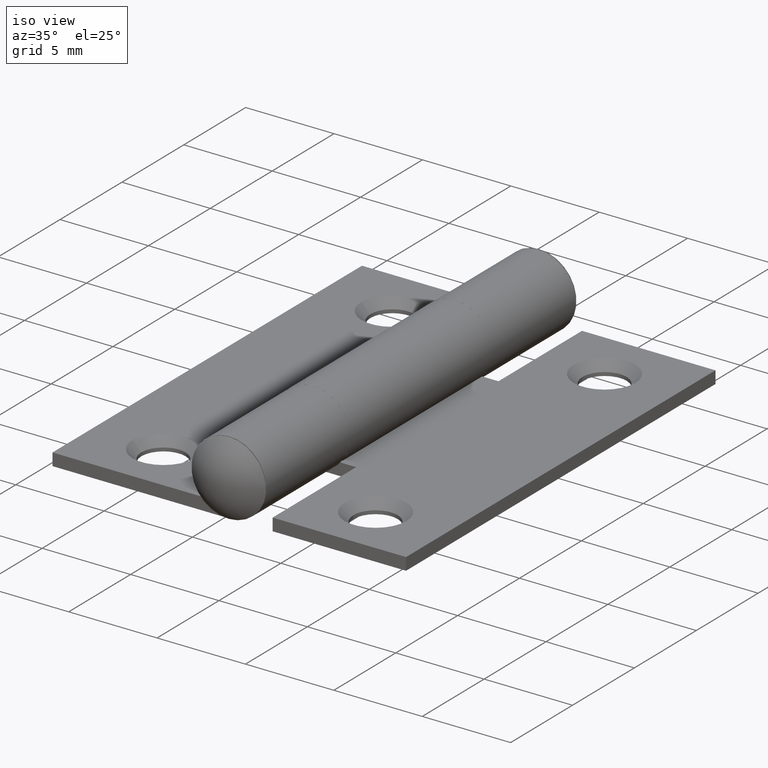
[diagram: clean part render]
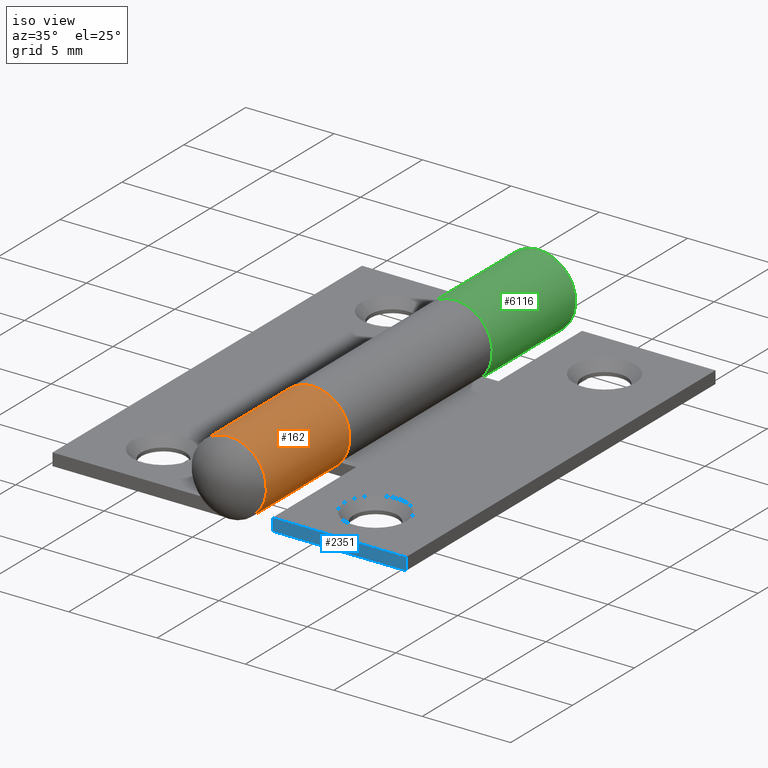
[diagram: same view with three faces highlighted in distinct colors, each labeled with its STEP entity id]
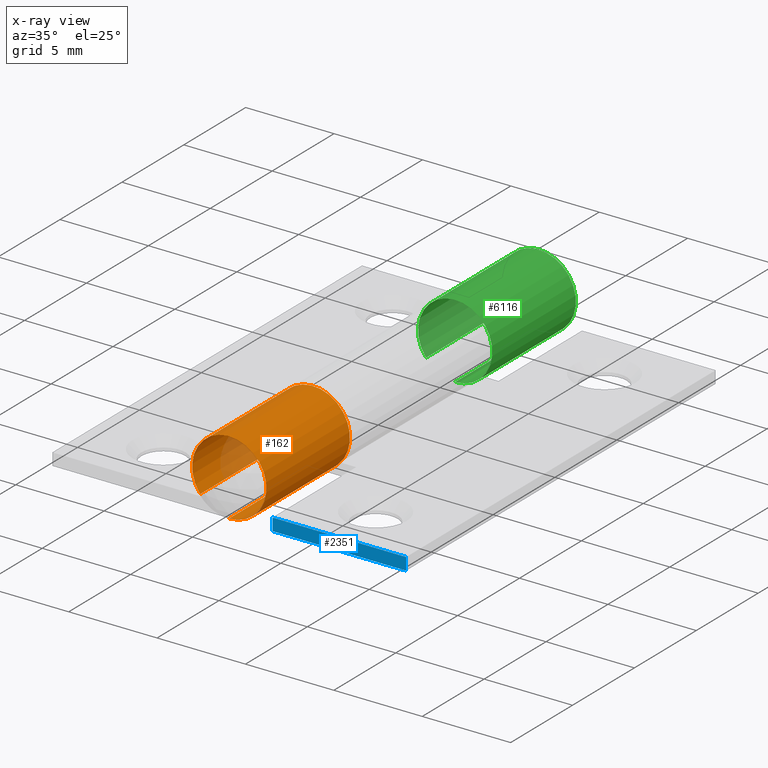
[diagram: x-ray of the same camera — body ghosted, the three highlighted faces saturated]
A machine part, iso view with three faces highlighted in distinct colors.
The next image is the same camera in x-ray (body ghosted, the three faces saturated) — at least one of them is partly hidden behind the body in this view.
Their STEP definitions:

[orange] entity #162 — the highlighted cylindrical surface (partial cylindrical patch) has radius 2.1 mm, axis along (-0, -1, -0).
#28 = CARTESIAN_POINT ( 'NONE',  ( -2.099999999999999645, -12.50000000000000000, 0.000000000000000000 ) ) ;
#162 = ADVANCED_FACE ( 'NONE', ( #5935 ), #5802, .T. ) ;
#429 = VECTOR ( 'NONE', #980, 1000.000000000000000 ) ;
#478 = AXIS2_PLACEMENT_3D ( 'NONE', #3183, #9359, #4084 ) ;
#563 = VECTOR ( 'NONE', #1134, 1000.000000000000000 ) ;
#603 = AXIS2_PLACEMENT_3D ( 'NONE', #6970, #886, #6208 ) ;
#886 = DIRECTION ( 'NONE',  ( -0.000000000000000000, -1.000000000000000000, -0.000000000000000000 ) ) ;
#980 = DIRECTION ( 'NONE',  ( -0.000000000000000000, -1.000000000000000000, -0.000000000000000000 ) ) ;
#1134 = DIRECTION ( 'NONE',  ( -0.000000000000000000, -1.000000000000000000, -0.000000000000000000 ) ) ;
#1338 = ORIENTED_EDGE ( 'NONE', *, *, #8909, .F. ) ;
#1547 = VERTEX_POINT ( 'NONE', #28 ) ;
#2898 = CARTESIAN_POINT ( 'NONE',  ( -2.100000000000000089, -5.750000000000001776, 2.100000000000000089 ) ) ;
#2935 = VERTEX_POINT ( 'NONE', #5439 ) ;
#3183 = CARTESIAN_POINT ( 'NONE',  ( -2.100000000000000089, -12.50000000000000000, 2.100000000000000089 ) ) ;
#3367 = EDGE_CURVE ( 'NONE', #5385, #3945, #4789, .T. ) ;
#3656 = EDGE_CURVE ( 'NONE', #2935, #1547, #8199, .T. ) ;
#3945 = VERTEX_POINT ( 'NONE', #4229 ) ;
#4084 = DIRECTION ( 'NONE',  ( 0.000000000000000000, 0.000000000000000000, -1.000000000000000000 ) ) ;
#4229 = CARTESIAN_POINT ( 'NONE',  ( -3.749242250247063257, -5.750000000000001776, 0.8000000000000000444 ) ) ;
#4262 = EDGE_CURVE ( 'NONE', #3945, #2935, #5300, .T. ) ;
#4526 = LINE ( 'NONE', #10709, #563 ) ;
#4789 = CIRCLE ( 'NONE', #6325, 2.099999999999999645 ) ;
#5085 = ORIENTED_EDGE ( 'NONE', *, *, #4262, .T. ) ;
#5300 = LINE ( 'NONE', #7885, #429 ) ;
#5385 = VERTEX_POINT ( 'NONE', #6061 ) ;
#5439 = CARTESIAN_POINT ( 'NONE',  ( -3.749242250247063257, -12.50000000000000000, 0.8000000000000001554 ) ) ;
#5577 = ORIENTED_EDGE ( 'NONE', *, *, #3656, .T. ) ;
#5802 = CYLINDRICAL_SURFACE ( 'NONE', #603, 2.099999999999999645 ) ;
#5935 = FACE_OUTER_BOUND ( 'NONE', #9751, .T. ) ;
#6061 = CARTESIAN_POINT ( 'NONE',  ( -2.099999999999999645, -5.750000000000000000, 2.732189474663471667E-16 ) ) ;
#6208 = DIRECTION ( 'NONE',  ( 0.000000000000000000, 0.000000000000000000, -1.000000000000000000 ) ) ;
#6325 = AXIS2_PLACEMENT_3D ( 'NONE', #2898, #9012, #7214 ) ;
#6970 = CARTESIAN_POINT ( 'NONE',  ( -2.100000000000000089, 12.50000000000000000, 2.100000000000000089 ) ) ;
#7214 = DIRECTION ( 'NONE',  ( 0.000000000000000000, 0.000000000000000000, -1.000000000000000000 ) ) ;
#7885 = CARTESIAN_POINT ( 'NONE',  ( -3.749242250247063257, 12.50000000000000000, 0.8000000000000001554 ) ) ;
#8199 = CIRCLE ( 'NONE', #478, 2.099999999999999645 ) ;
#8909 = EDGE_CURVE ( 'NONE', #5385, #1547, #4526, .T. ) ;
#9012 = DIRECTION ( 'NONE',  ( 0.000000000000000000, -1.000000000000000000, 0.000000000000000000 ) ) ;
#9359 = DIRECTION ( 'NONE',  ( 0.000000000000000000, 1.000000000000000000, -0.000000000000000000 ) ) ;
#9751 = EDGE_LOOP ( 'NONE', ( #1338, #9903, #5085, #5577 ) ) ;
#9903 = ORIENTED_EDGE ( 'NONE', *, *, #3367, .T. ) ;
#10709 = CARTESIAN_POINT ( 'NONE',  ( -2.099999999999999645, 12.50000000000000000, 0.000000000000000000 ) ) ;

[blue] entity #2351 — the highlighted planar face has unit normal (0, 1, 0).
#420 = EDGE_CURVE ( 'NONE', #10159, #6763, #4434, .T. ) ;
#772 = ORIENTED_EDGE ( 'NONE', *, *, #4624, .T. ) ;
#1125 = DIRECTION ( 'NONE',  ( 1.000000000000000000, -0.000000000000000000, -1.192622389734055124E-16 ) ) ;
#1212 = VECTOR ( 'NONE', #1125, 1000.000000000000000 ) ;
#1217 = LINE ( 'NONE', #2483, #5587 ) ;
#2232 = VERTEX_POINT ( 'NONE', #10816 ) ;
#2351 = ADVANCED_FACE ( 'NONE', ( #7518 ), #11083, .F. ) ;
#2483 = CARTESIAN_POINT ( 'NONE',  ( -4.549999999999999822, 12.50000000000000000, 2.100000000000000089 ) ) ;
#2537 = CARTESIAN_POINT ( 'NONE',  ( -4.549999999999999822, 12.50000000000000000, 0.7000000000000009548 ) ) ;
#2645 = DIRECTION ( 'NONE',  ( -1.301042606982605321E-16, 0.000000000000000000, -1.000000000000000000 ) ) ;
#2862 = CARTESIAN_POINT ( 'NONE',  ( -2.099999999999999645, 12.50000000000000000, 0.000000000000000000 ) ) ;
#3107 = VERTEX_POINT ( 'NONE', #2537 ) ;
#3672 = LINE ( 'NONE', #5465, #1212 ) ;
#4274 = CARTESIAN_POINT ( 'NONE',  ( -12.09999999999999964, 12.50000000000000000, 1.301042606982605321E-15 ) ) ;
#4345 = ORIENTED_EDGE ( 'NONE', *, *, #4488, .T. ) ;
#4434 = LINE ( 'NONE', #2862, #4951 ) ;
#4488 = EDGE_CURVE ( 'NONE', #6763, #2232, #8188, .T. ) ;
#4624 = EDGE_CURVE ( 'NONE', #2232, #3107, #3672, .T. ) ;
#4781 = AXIS2_PLACEMENT_3D ( 'NONE', #9189, #10279, #7734 ) ;
#4951 = VECTOR ( 'NONE', #5752, 1000.000000000000000 ) ;
#5465 = CARTESIAN_POINT ( 'NONE',  ( -2.099999999999999645, 12.50000000000000000, 0.7000000000000000666 ) ) ;
#5587 = VECTOR ( 'NONE', #2645, 1000.000000000000000 ) ;
#5752 = DIRECTION ( 'NONE',  ( -1.000000000000000000, 0.000000000000000000, 1.301042606982605321E-16 ) ) ;
#6763 = VERTEX_POINT ( 'NONE', #4274 ) ;
#6967 = VECTOR ( 'NONE', #9537, 1000.000000000000000 ) ;
#7081 = ORIENTED_EDGE ( 'NONE', *, *, #420, .T. ) ;
#7518 = FACE_OUTER_BOUND ( 'NONE', #8942, .T. ) ;
#7734 = DIRECTION ( 'NONE',  ( 0.000000000000000000, -0.000000000000000000, -1.000000000000000000 ) ) ;
#7756 = CARTESIAN_POINT ( 'NONE',  ( -12.09999999999999787, 12.50000000000000000, 0.7000000000000012879 ) ) ;
#8188 = LINE ( 'NONE', #7756, #6967 ) ;
#8269 = ORIENTED_EDGE ( 'NONE', *, *, #10379, .T. ) ;
#8942 = EDGE_LOOP ( 'NONE', ( #772, #8269, #7081, #4345 ) ) ;
#9189 = CARTESIAN_POINT ( 'NONE',  ( -2.100000000000000089, 12.50000000000000000, 2.100000000000000089 ) ) ;
#9537 = DIRECTION ( 'NONE',  ( 2.478176394252581732E-15, -0.000000000000000000, 1.000000000000000000 ) ) ;
#9756 = CARTESIAN_POINT ( 'NONE',  ( -4.549999999999999822, 12.50000000000000000, 3.187554387107384022E-16 ) ) ;
#10159 = VERTEX_POINT ( 'NONE', #9756 ) ;
#10279 = DIRECTION ( 'NONE',  ( 0.000000000000000000, -1.000000000000000000, 0.000000000000000000 ) ) ;
#10379 = EDGE_CURVE ( 'NONE', #3107, #10159, #1217, .T. ) ;
#10816 = CARTESIAN_POINT ( 'NONE',  ( -12.09999999999999787, 12.50000000000000000, 0.7000000000000012879 ) ) ;
#11083 = PLANE ( 'NONE',  #4781 ) ;

[green] entity #6116 — the highlighted cylindrical surface (partial cylindrical patch) has radius 2.1 mm, axis along (-0, -1, -0).
#356 = ORIENTED_EDGE ( 'NONE', *, *, #9009, .T. ) ;
#904 = VERTEX_POINT ( 'NONE', #10549 ) ;
#924 = CYLINDRICAL_SURFACE ( 'NONE', #3093, 2.099999999999999645 ) ;
#1415 = CARTESIAN_POINT ( 'NONE',  ( -2.099999999999999645, 12.50000000000000000, 0.000000000000000000 ) ) ;
#1607 = EDGE_CURVE ( 'NONE', #904, #7749, #4122, .T. ) ;
#1977 = CARTESIAN_POINT ( 'NONE',  ( -2.099999999999999645, 12.50000000000000000, 0.000000000000000000 ) ) ;
#2119 = VERTEX_POINT ( 'NONE', #1415 ) ;
#2272 = AXIS2_PLACEMENT_3D ( 'NONE', #8140, #2907, #9705 ) ;
#2729 = CARTESIAN_POINT ( 'NONE',  ( -2.100000000000000089, 12.50000000000000000, 2.100000000000000089 ) ) ;
#2907 = DIRECTION ( 'NONE',  ( 0.000000000000000000, 1.000000000000000000, -0.000000000000000000 ) ) ;
#2974 = DIRECTION ( 'NONE',  ( -0.000000000000000000, -1.000000000000000000, -0.000000000000000000 ) ) ;
#3093 = AXIS2_PLACEMENT_3D ( 'NONE', #6291, #7916, #8938 ) ;
#3263 = LINE ( 'NONE', #1977, #6573 ) ;
#3277 = EDGE_CURVE ( 'NONE', #2119, #7749, #3263, .T. ) ;
#3821 = CARTESIAN_POINT ( 'NONE',  ( -3.749242250247063257, 12.50000000000000000, 0.8000000000000001554 ) ) ;
#4122 = CIRCLE ( 'NONE', #2272, 2.099999999999999201 ) ;
#4193 = ORIENTED_EDGE ( 'NONE', *, *, #1607, .T. ) ;
#4569 = DIRECTION ( 'NONE',  ( 0.000000000000000000, 1.000000000000000000, -0.000000000000000000 ) ) ;
#5170 = CARTESIAN_POINT ( 'NONE',  ( -3.749242250247063257, 12.50000000000000000, 0.8000000000000001554 ) ) ;
#5468 = DIRECTION ( 'NONE',  ( 0.000000000000000000, 0.000000000000000000, -1.000000000000000000 ) ) ;
#5732 = EDGE_CURVE ( 'NONE', #6941, #2119, #10917, .T. ) ;
#6116 = ADVANCED_FACE ( 'NONE', ( #7073 ), #924, .T. ) ;
#6291 = CARTESIAN_POINT ( 'NONE',  ( -2.100000000000000089, 12.50000000000000000, 2.100000000000000089 ) ) ;
#6573 = VECTOR ( 'NONE', #2974, 1000.000000000000000 ) ;
#6941 = VERTEX_POINT ( 'NONE', #5170 ) ;
#7073 = FACE_OUTER_BOUND ( 'NONE', #8861, .T. ) ;
#7708 = ORIENTED_EDGE ( 'NONE', *, *, #5732, .F. ) ;
#7749 = VERTEX_POINT ( 'NONE', #8303 ) ;
#7916 = DIRECTION ( 'NONE',  ( -0.000000000000000000, -1.000000000000000000, -0.000000000000000000 ) ) ;
#8140 = CARTESIAN_POINT ( 'NONE',  ( -2.100000000000000089, 5.750000000000000000, 2.100000000000000089 ) ) ;
#8260 = DIRECTION ( 'NONE',  ( -0.000000000000000000, -1.000000000000000000, -0.000000000000000000 ) ) ;
#8303 = CARTESIAN_POINT ( 'NONE',  ( -2.099999999999999645, 5.750000000000000000, 2.732189474663471667E-16 ) ) ;
#8861 = EDGE_LOOP ( 'NONE', ( #4193, #9940, #7708, #356 ) ) ;
#8938 = DIRECTION ( 'NONE',  ( 0.000000000000000000, 0.000000000000000000, -1.000000000000000000 ) ) ;
#9009 = EDGE_CURVE ( 'NONE', #6941, #904, #10949, .T. ) ;
#9705 = DIRECTION ( 'NONE',  ( 0.000000000000000000, 0.000000000000000000, 1.000000000000000000 ) ) ;
#9940 = ORIENTED_EDGE ( 'NONE', *, *, #3277, .F. ) ;
#9973 = VECTOR ( 'NONE', #8260, 1000.000000000000000 ) ;
#10549 = CARTESIAN_POINT ( 'NONE',  ( -3.749242250247063257, 5.750000000000000000, 0.8000000000000001554 ) ) ;
#10917 = CIRCLE ( 'NONE', #10946, 2.099999999999999645 ) ;
#10946 = AXIS2_PLACEMENT_3D ( 'NONE', #2729, #4569, #5468 ) ;
#10949 = LINE ( 'NONE', #3821, #9973 ) ;